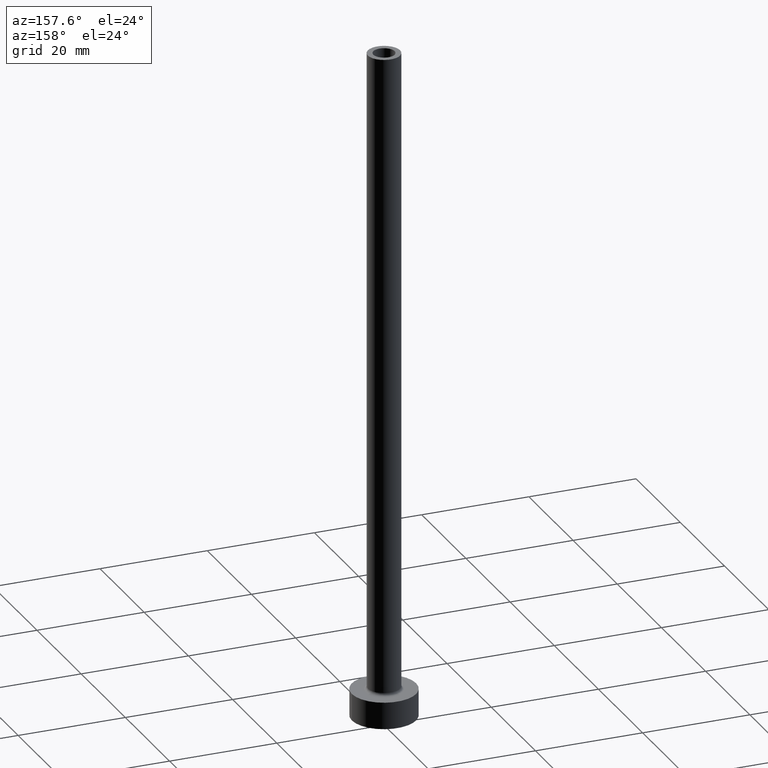
[diagram: clean part render]
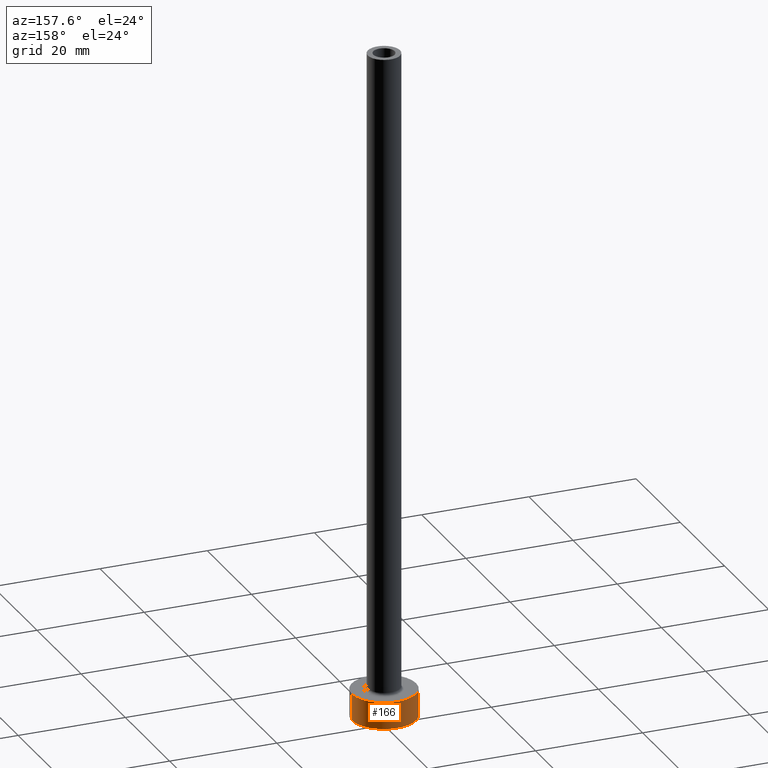
[diagram: same view with one face highlighted and labeled with its STEP entity id]
A machine part, auxiliary view. The second image highlights one B-rep face of the part: STEP entity #166.
In plain terms, the highlighted cylindrical surface (edge-blend (fillet) strip) has radius 6 mm, axis along (-0, -0, -1).
Its self-contained STEP definition (entity closure, byte-faithful):
#13 = VECTOR ( 'NONE', #126, 1000.000000000000000 ) ;
#31 = ORIENTED_EDGE ( 'NONE', *, *, #332, .F. ) ;
#35 = CYLINDRICAL_SURFACE ( 'NONE', #90, 6.000000000000000888 ) ;
#40 = DIRECTION ( 'NONE',  ( -0.000000000000000000, -0.000000000000000000, -1.000000000000000000 ) ) ;
#60 = DIRECTION ( 'NONE',  ( 0.000000000000000000, 0.000000000000000000, 1.000000000000000000 ) ) ;
#90 = AXIS2_PLACEMENT_3D ( 'NONE', #328, #40, #360 ) ;
#91 = CARTESIAN_POINT ( 'NONE',  ( 6.000000000000000888, 7.347880794884120722E-16, 5.000000000000000000 ) ) ;
#100 = CARTESIAN_POINT ( 'NONE',  ( 0.000000000000000000, 0.000000000000000000, 0.000000000000000000 ) ) ;
#101 = CARTESIAN_POINT ( 'NONE',  ( -6.000000000000000888, 0.000000000000000000, 5.000000000000000000 ) ) ;
#126 = DIRECTION ( 'NONE',  ( -0.000000000000000000, -0.000000000000000000, -1.000000000000000000 ) ) ;
#129 = EDGE_CURVE ( 'NONE', #305, #342, #263, .T. ) ;
#130 = CARTESIAN_POINT ( 'NONE',  ( -6.000000000000000888, 0.000000000000000000, 5.000000000000000000 ) ) ;
#143 = ORIENTED_EDGE ( 'NONE', *, *, #129, .T. ) ;
#150 = ORIENTED_EDGE ( 'NONE', *, *, #183, .F. ) ;
#166 = ADVANCED_FACE ( 'NONE', ( #182 ), #35, .T. ) ;
#174 = LINE ( 'NONE', #101, #13 ) ;
#182 = FACE_OUTER_BOUND ( 'NONE', #237, .T. ) ;
#183 = EDGE_CURVE ( 'NONE', #348, #294, #366, .T. ) ;
#185 = DIRECTION ( 'NONE',  ( 1.000000000000000000, 0.000000000000000000, 0.000000000000000000 ) ) ;
#193 = DIRECTION ( 'NONE',  ( -0.000000000000000000, -0.000000000000000000, -1.000000000000000000 ) ) ;
#220 = AXIS2_PLACEMENT_3D ( 'NONE', #100, #60, #379 ) ;
#237 = EDGE_LOOP ( 'NONE', ( #150, #336, #143, #31 ) ) ;
#247 = CARTESIAN_POINT ( 'NONE',  ( -6.000000000000000888, 0.000000000000000000, 0.000000000000000000 ) ) ;
#263 = CIRCLE ( 'NONE', #220, 6.000000000000000888 ) ;
#282 = CARTESIAN_POINT ( 'NONE',  ( 6.000000000000000888, 7.347880794884120722E-16, 0.000000000000000000 ) ) ;
#294 = VERTEX_POINT ( 'NONE', #130 ) ;
#305 = VERTEX_POINT ( 'NONE', #282 ) ;
#316 = EDGE_CURVE ( 'NONE', #348, #305, #410, .T. ) ;
#328 = CARTESIAN_POINT ( 'NONE',  ( 0.000000000000000000, 0.000000000000000000, 5.000000000000000000 ) ) ;
#332 = EDGE_CURVE ( 'NONE', #294, #342, #174, .T. ) ;
#336 = ORIENTED_EDGE ( 'NONE', *, *, #316, .T. ) ;
#338 = AXIS2_PLACEMENT_3D ( 'NONE', #432, #363, #185 ) ;
#342 = VERTEX_POINT ( 'NONE', #247 ) ;
#348 = VERTEX_POINT ( 'NONE', #437 ) ;
#360 = DIRECTION ( 'NONE',  ( -1.000000000000000000, 0.000000000000000000, 0.000000000000000000 ) ) ;
#363 = DIRECTION ( 'NONE',  ( 0.000000000000000000, 0.000000000000000000, 1.000000000000000000 ) ) ;
#366 = CIRCLE ( 'NONE', #338, 6.000000000000000888 ) ;
#379 = DIRECTION ( 'NONE',  ( 1.000000000000000000, 0.000000000000000000, 0.000000000000000000 ) ) ;
#410 = LINE ( 'NONE', #91, #413 ) ;
#413 = VECTOR ( 'NONE', #193, 1000.000000000000000 ) ;
#432 = CARTESIAN_POINT ( 'NONE',  ( 0.000000000000000000, 0.000000000000000000, 5.000000000000000000 ) ) ;
#437 = CARTESIAN_POINT ( 'NONE',  ( 6.000000000000000888, 7.347880794884120722E-16, 5.000000000000000000 ) ) ;